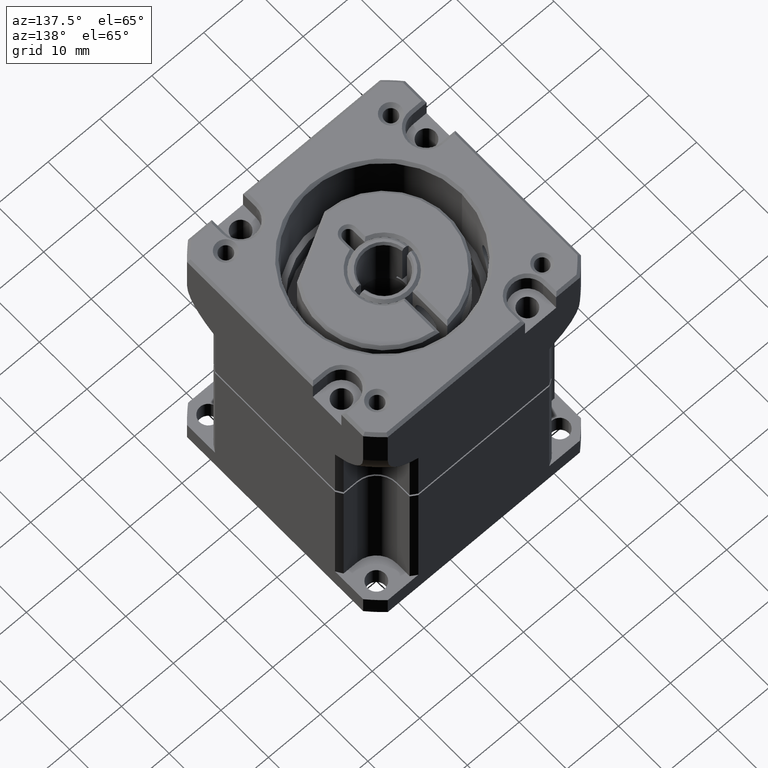
[diagram: clean part render]
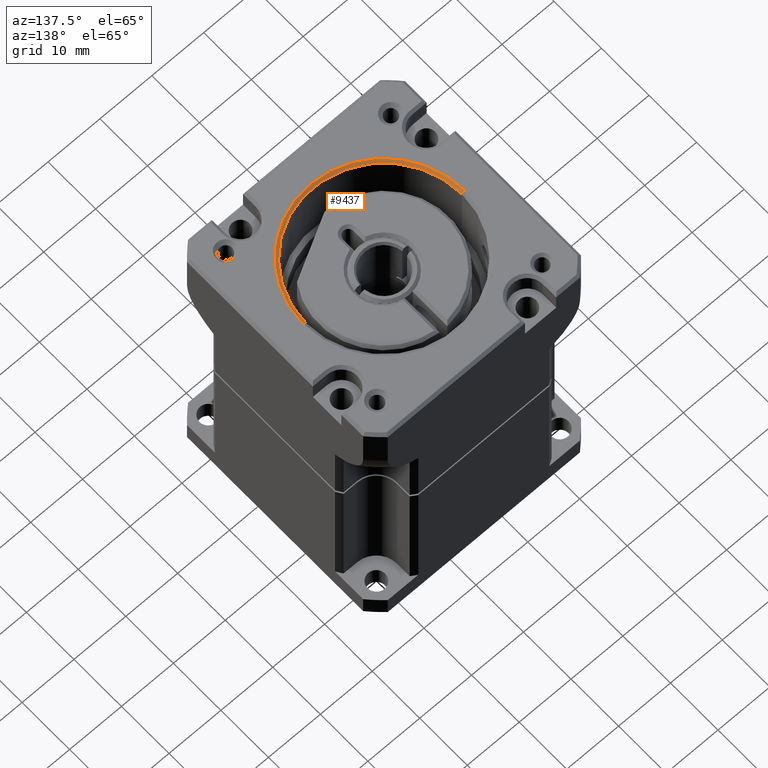
[diagram: same view with one face highlighted and labeled with its STEP entity id]
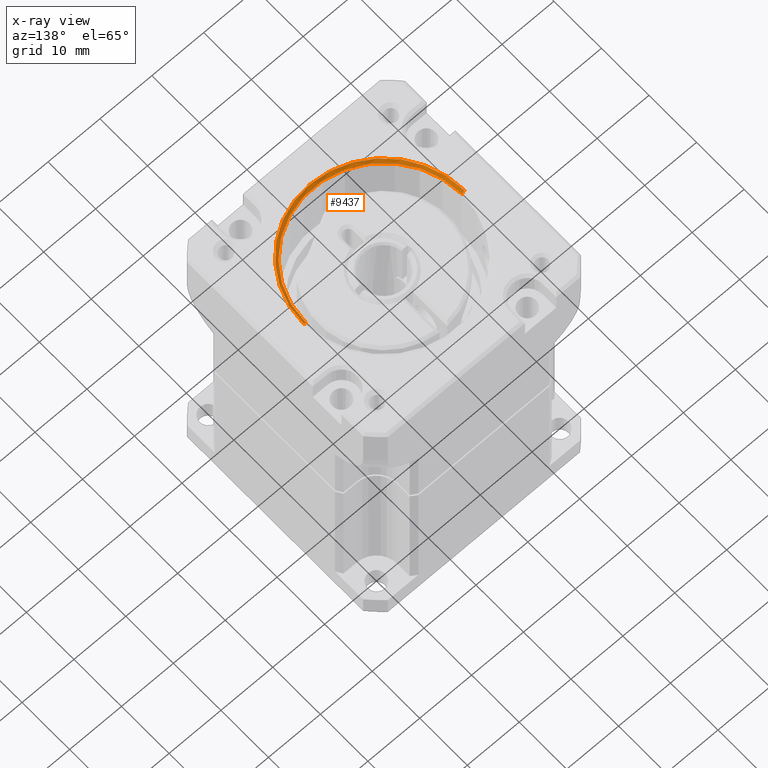
[diagram: x-ray of the same camera — body ghosted, the highlighted face saturated]
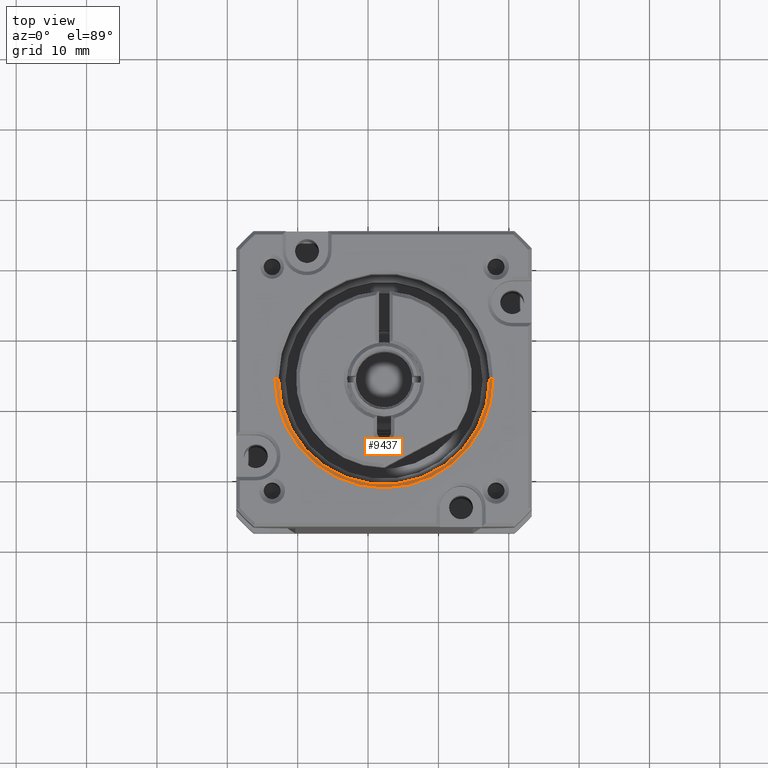
[diagram: same view with one face highlighted and labeled with its STEP entity id]
A machine part, auxiliary view. The second image highlights one B-rep face of the part: STEP entity #9437.
The next image is the same camera in x-ray: the body ghosted, the highlighted face saturated — about 0% of this face is hidden behind the body in this view.
A second angle (top view) of the same face is appended — the face is thin or edge-on in the first view.
In plain terms, the highlighted conical surface has half-angle 45 deg.
Its self-contained STEP definition (entity closure, byte-faithful):
#23 = CARTESIAN_POINT ( 'NONE',  ( 0.0000000000000000000, 0.0000000000000000000, -4.065758159956322500E-016 ) ) ;
#366 = CARTESIAN_POINT ( 'NONE',  ( -15.00000000000000000, 0.0000000000000000000, 0.5000000000000000000 ) ) ;
#422 = CARTESIAN_POINT ( 'NONE',  ( -15.50000000000000000, 0.0000000000000000000, 0.0000000000000000000 ) ) ;
#430 = DIRECTION ( 'NONE',  ( -0.7071067805519573000, 0.0000000000000000000, -0.7071067818211378400 ) ) ;
#1117 = EDGE_CURVE ( 'NONE', #5231, #2745, #2379, .T. ) ;
#1226 = DIRECTION ( 'NONE',  ( -0.0000000000000000000, -0.0000000000000000000, 1.000000000000000000 ) ) ;
#1302 = CONICAL_SURFACE ( 'NONE', #10064, 15.50000000000000000, 0.7853981625000020500 ) ;
#1418 = AXIS2_PLACEMENT_3D ( 'NONE', #8717, #1226, #8957 ) ;
#1580 = AXIS2_PLACEMENT_3D ( 'NONE', #8969, #9006, #2052 ) ;
#1714 = CARTESIAN_POINT ( 'NONE',  ( 15.50000000000000000, 1.898202538678397600E-015, -4.065758159956322500E-016 ) ) ;
#1789 = DIRECTION ( 'NONE',  ( 0.7071067805519573000, 8.659560554583443800E-017, -0.7071067818211378400 ) ) ;
#1883 = CIRCLE ( 'NONE', #1580, 15.00000000000000000 ) ;
#2052 = DIRECTION ( 'NONE',  ( 1.000000000000000000, 0.0000000000000000000, 0.0000000000000000000 ) ) ;
#2379 = LINE ( 'NONE', #8219, #11040 ) ;
#2745 = VERTEX_POINT ( 'NONE', #422 ) ;
#3044 = ORIENTED_EDGE ( 'NONE', *, *, #4463, .T. ) ;
#3616 = FACE_OUTER_BOUND ( 'NONE', #9011, .T. ) ;
#4084 = VERTEX_POINT ( 'NONE', #9005 ) ;
#4461 = EDGE_CURVE ( 'NONE', #7868, #4084, #9354, .T. ) ;
#4463 = EDGE_CURVE ( 'NONE', #5231, #7868, #1883, .T. ) ;
#4557 = CIRCLE ( 'NONE', #1418, 15.50000000000000000 ) ;
#4861 = VECTOR ( 'NONE', #1789, 999.9999999999998900 ) ;
#5231 = VERTEX_POINT ( 'NONE', #366 ) ;
#6346 = ORIENTED_EDGE ( 'NONE', *, *, #4461, .T. ) ;
#7497 = ORIENTED_EDGE ( 'NONE', *, *, #1117, .F. ) ;
#7700 = DIRECTION ( 'NONE',  ( -1.000000000000000000, 0.0000000000000000000, 0.0000000000000000000 ) ) ;
#7868 = VERTEX_POINT ( 'NONE', #8891 ) ;
#8219 = CARTESIAN_POINT ( 'NONE',  ( -15.50000000000000000, 0.0000000000000000000, -4.065758159956322500E-016 ) ) ;
#8717 = CARTESIAN_POINT ( 'NONE',  ( 0.0000000000000000000, 0.0000000000000000000, 0.0000000000000000000 ) ) ;
#8891 = CARTESIAN_POINT ( 'NONE',  ( 15.00000000000000000, 1.867586368698797900E-015, 0.5000000000000000000 ) ) ;
#8957 = DIRECTION ( 'NONE',  ( -1.000000000000000000, 0.0000000000000000000, 0.0000000000000000000 ) ) ;
#8969 = CARTESIAN_POINT ( 'NONE',  ( 0.0000000000000000000, 0.0000000000000000000, 0.5000000000000000000 ) ) ;
#9005 = CARTESIAN_POINT ( 'NONE',  ( 15.50000000000000000, 1.898202538678397600E-015, 0.0000000000000000000 ) ) ;
#9006 = DIRECTION ( 'NONE',  ( 0.0000000000000000000, 0.0000000000000000000, 1.000000000000000000 ) ) ;
#9011 = EDGE_LOOP ( 'NONE', ( #3044, #6346, #9794, #7497 ) ) ;
#9354 = LINE ( 'NONE', #1714, #4861 ) ;
#9437 = ADVANCED_FACE ( 'NONE', ( #3616 ), #1302, .F. ) ;
#9794 = ORIENTED_EDGE ( 'NONE', *, *, #9973, .F. ) ;
#9973 = EDGE_CURVE ( 'NONE', #2745, #4084, #4557, .T. ) ;
#10064 = AXIS2_PLACEMENT_3D ( 'NONE', #23, #10288, #7700 ) ;
#10288 = DIRECTION ( 'NONE',  ( 0.0000000000000000000, 0.0000000000000000000, -1.000000000000000000 ) ) ;
#11040 = VECTOR ( 'NONE', #430, 999.9999999999998900 ) ;